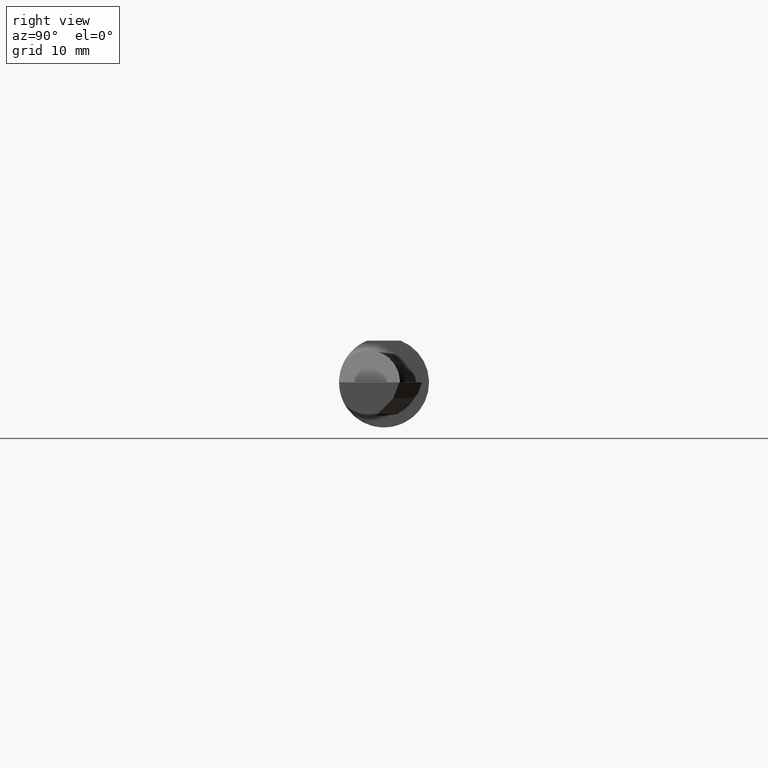
[diagram: clean part render]
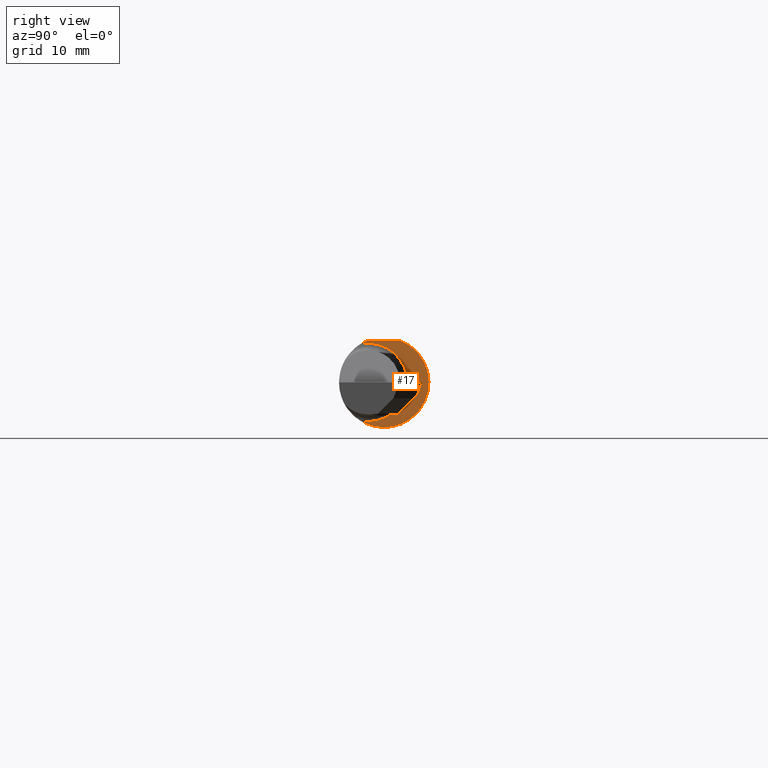
[diagram: same view with one face highlighted and labeled with its STEP entity id]
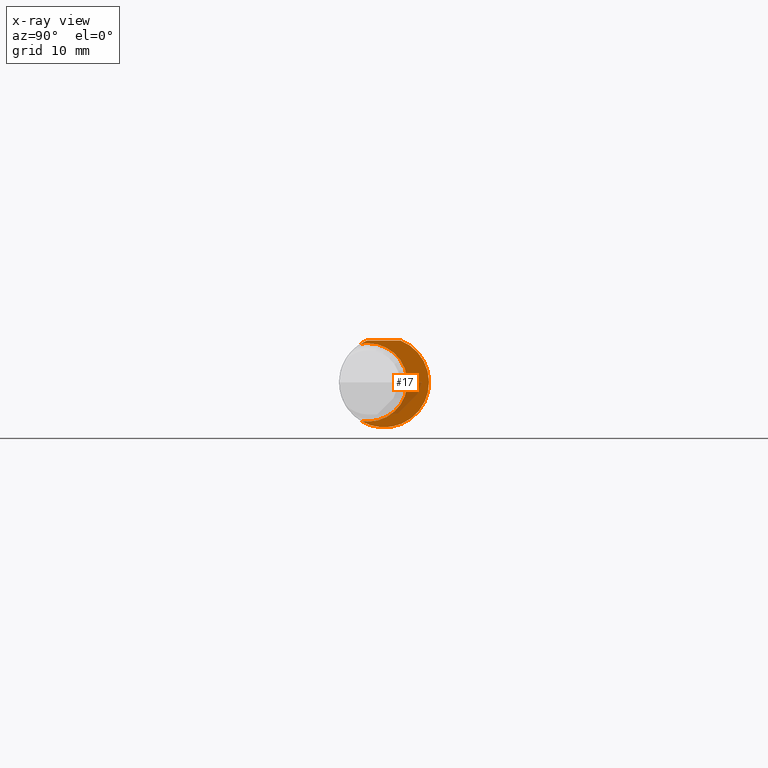
[diagram: x-ray of the same camera — body ghosted, the highlighted face saturated]
A machine part, right view. The second image highlights one B-rep face of the part: STEP entity #17.
The next image is the same camera in x-ray: the body ghosted, the highlighted face saturated — about 15% of this face is hidden behind the body in this view.
In plain terms, the highlighted planar face has unit normal (1, 0, 0).
Its self-contained STEP definition (entity closure, byte-faithful):
#17 = ADVANCED_FACE ( 'NONE', ( #584 ), #515, .T. ) ;
#18 = CARTESIAN_POINT ( 'NONE',  ( 1.405000000000000249, 0.2559000000000000163, 0.000000000000000000 ) ) ;
#29 = CIRCLE ( 'NONE', #152, 0.1560999999999999888 ) ;
#31 = CIRCLE ( 'NONE', #108, 0.1360000000000000098 ) ;
#40 = DIRECTION ( 'NONE',  ( 0.000000000000000000, 0.000000000000000000, -1.000000000000000000 ) ) ;
#65 = DIRECTION ( 'NONE',  ( 0.000000000000000000, 7.093263402666859258E-15, -1.000000000000000000 ) ) ;
#70 = VERTEX_POINT ( 'NONE', #897 ) ;
#76 = DIRECTION ( 'NONE',  ( 0.000000000000000000, 0.000000000000000000, -1.000000000000000000 ) ) ;
#102 = CARTESIAN_POINT ( 'NONE',  ( 1.405000000000000249, -0.08082776769509972259, 0.1335443071397166837 ) ) ;
#108 = AXIS2_PLACEMENT_3D ( 'NONE', #655, #736, #76 ) ;
#114 = VERTEX_POINT ( 'NONE', #102 ) ;
#118 = DIRECTION ( 'NONE',  ( 0.000000000000000000, -1.000000000000000000, 0.000000000000000000 ) ) ;
#130 = ORIENTED_EDGE ( 'NONE', *, *, #820, .T. ) ;
#135 = CARTESIAN_POINT ( 'NONE',  ( 1.405000000000000249, -0.05509999999999999620, 0.000000000000000000 ) ) ;
#147 = VERTEX_POINT ( 'NONE', #530 ) ;
#152 = AXIS2_PLACEMENT_3D ( 'NONE', #407, #700, #40 ) ;
#160 = EDGE_CURVE ( 'NONE', #681, #114, #878, .T. ) ;
#161 = ORIENTED_EDGE ( 'NONE', *, *, #742, .T. ) ;
#266 = CARTESIAN_POINT ( 'NONE',  ( 1.405000000000000249, -0.05756040305626783371, 0.1450999999999999512 ) ) ;
#287 = EDGE_CURVE ( 'NONE', #822, #681, #870, .T. ) ;
#294 = ORIENTED_EDGE ( 'NONE', *, *, #160, .T. ) ;
#326 = EDGE_LOOP ( 'NONE', ( #294, #947, #538, #130, #161, #580 ) ) ;
#329 = EDGE_CURVE ( 'NONE', #114, #147, #797, .T. ) ;
#374 = DIRECTION ( 'NONE',  ( 0.000000000000000000, 0.000000000000000000, -1.000000000000000000 ) ) ;
#384 = DIRECTION ( 'NONE',  ( 0.000000000000000000, 0.000000000000000000, -1.000000000000000000 ) ) ;
#407 = CARTESIAN_POINT ( 'NONE',  ( 1.405000000000000249, 0.000000000000000000, 0.000000000000000000 ) ) ;
#429 = AXIS2_PLACEMENT_3D ( 'NONE', #930, #492, #65 ) ;
#437 = CARTESIAN_POINT ( 'NONE',  ( 1.405000000000000249, 0.05756040305626781289, 0.1450999999999999512 ) ) ;
#460 = CARTESIAN_POINT ( 'NONE',  ( 1.405000000000000249, 0.000000000000000000, 0.000000000000000000 ) ) ;
#466 = DIRECTION ( 'NONE',  ( 0.000000000000000000, 0.000000000000000000, -1.000000000000000000 ) ) ;
#491 = CARTESIAN_POINT ( 'NONE',  ( 1.405000000000000249, -0.05509999999999999620, -0.1360000000000000098 ) ) ;
#492 = DIRECTION ( 'NONE',  ( -1.000000000000000000, -0.000000000000000000, -0.000000000000000000 ) ) ;
#500 = CARTESIAN_POINT ( 'NONE',  ( 1.405000000000000249, 0.1749999999999999889, 0.1450999999999999512 ) ) ;
#515 = PLANE ( 'NONE',  #926 ) ;
#530 = CARTESIAN_POINT ( 'NONE',  ( 1.405000000000000249, -0.05509999999999998233, 0.1360000000000000098 ) ) ;
#538 = ORIENTED_EDGE ( 'NONE', *, *, #898, .T. ) ;
#567 = AXIS2_PLACEMENT_3D ( 'NONE', #460, #757, #466 ) ;
#580 = ORIENTED_EDGE ( 'NONE', *, *, #287, .T. ) ;
#584 = FACE_OUTER_BOUND ( 'NONE', #326, .T. ) ;
#586 = DIRECTION ( 'NONE',  ( -1.000000000000000000, -0.000000000000000000, -0.000000000000000000 ) ) ;
#598 = DIRECTION ( 'NONE',  ( 1.000000000000000000, 0.000000000000000000, 0.000000000000000000 ) ) ;
#641 = VERTEX_POINT ( 'NONE', #491 ) ;
#655 = CARTESIAN_POINT ( 'NONE',  ( 1.405000000000000249, -0.05509999999999999620, 0.000000000000000000 ) ) ;
#681 = VERTEX_POINT ( 'NONE', #266 ) ;
#700 = DIRECTION ( 'NONE',  ( 1.000000000000000000, 0.000000000000000000, 0.000000000000000000 ) ) ;
#736 = DIRECTION ( 'NONE',  ( -1.000000000000000000, -0.000000000000000000, -0.000000000000000000 ) ) ;
#738 = AXIS2_PLACEMENT_3D ( 'NONE', #135, #586, #374 ) ;
#742 = EDGE_CURVE ( 'NONE', #70, #822, #29, .T. ) ;
#757 = DIRECTION ( 'NONE',  ( 1.000000000000000000, 0.000000000000000000, 0.000000000000000000 ) ) ;
#797 = CIRCLE ( 'NONE', #429, 0.1360000000000000098 ) ;
#818 = CIRCLE ( 'NONE', #738, 0.1360000000000000098 ) ;
#820 = EDGE_CURVE ( 'NONE', #641, #70, #818, .T. ) ;
#822 = VERTEX_POINT ( 'NONE', #437 ) ;
#846 = VECTOR ( 'NONE', #118, 39.37007874015748143 ) ;
#870 = LINE ( 'NONE', #500, #846 ) ;
#878 = CIRCLE ( 'NONE', #567, 0.1560999999999999888 ) ;
#897 = CARTESIAN_POINT ( 'NONE',  ( 1.405000000000000249, -0.08082776769509972259, -0.1335443071397166837 ) ) ;
#898 = EDGE_CURVE ( 'NONE', #147, #641, #31, .T. ) ;
#926 = AXIS2_PLACEMENT_3D ( 'NONE', #18, #598, #384 ) ;
#930 = CARTESIAN_POINT ( 'NONE',  ( 1.405000000000000249, -0.05509999999999999620, 0.000000000000000000 ) ) ;
#947 = ORIENTED_EDGE ( 'NONE', *, *, #329, .T. ) ;